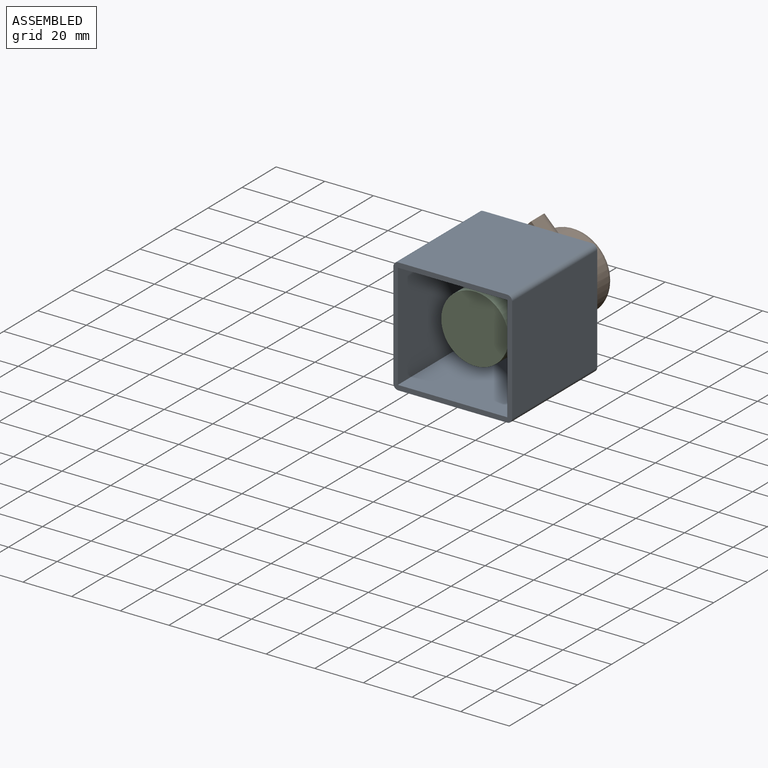
[diagram: assembled view]
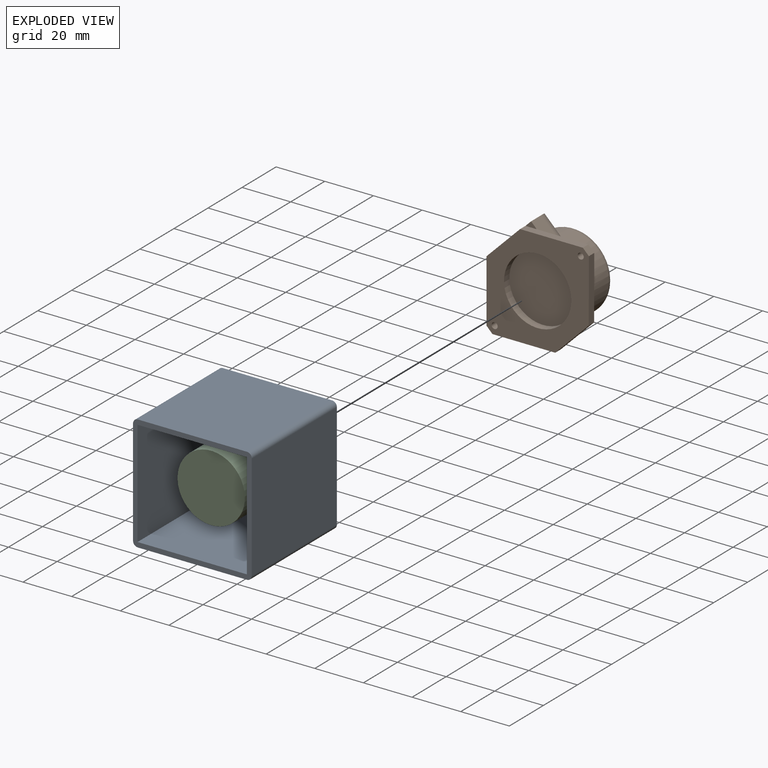
[diagram: exploded view]
GUIDED TOUR — MATED ASSEMBLY (Onshape document b7fde96b1c30bc0657f4f036, AutoMate assembly b7fde96b1c30bc0657f4f036_64c29fdbe87428bc395a7055_68232977d7bca1f0957cc7c8_default)

This assembly has 3 components, labeled P0..P2 below (a component is one placed occurrence of a part; the same part can appear more than once), held together by 2 mates. A mate is a constraint between two components; its type names the relative motion it leaves free:
  FASTENED — locks the two components together rigidly (no relative motion),
  REVOLUTE — leaves rotation about the listed axis free (a hinge).
Axis/direction vectors are unit vectors and 'through' points are millimeter coordinates, both in the assembly's world frame.

MATES
  1. REVOLUTE "Revolute 1": P0 <-> P1, axis (0.000, 1.000, 0.000) through (17.77, 25.03, 17.70) mm
  2. FASTENED "Fastened 1": P1 <-> P2, direction (0.000, -1.000, 0.000) through (0.07, 28.18, 0.04) mm

ASSEMBLY ORDER
  1. P1 — the base component [order heuristic]
  2. P2 — core [order heuristic]
  3. P0 [order verified]
Order-tag legend:
  [order verified] — this step's position reverses a verified removal order: the component was checked to insert without passing through the ones already placed.
  [order heuristic] — the first 2 components form the assembly's core: parts whose collision-free extraction could not be verified, listed in mate-graph order.

Of the 3 components, 1 carries the full construction recipe — the FeatureScript program that regenerates the part's solid from scratch; the rest are supplied as boundary geometry only.
Each toured component is shown spotlighted twice — in the assembled view, then in the exploded view, where a leader line traces a displaced component back to its assembled socket (saturated green if recipe-attached, orange if geometry-only; every other component desaturated gray) — followed by its recipe or geometry summary and the mates that hold it.
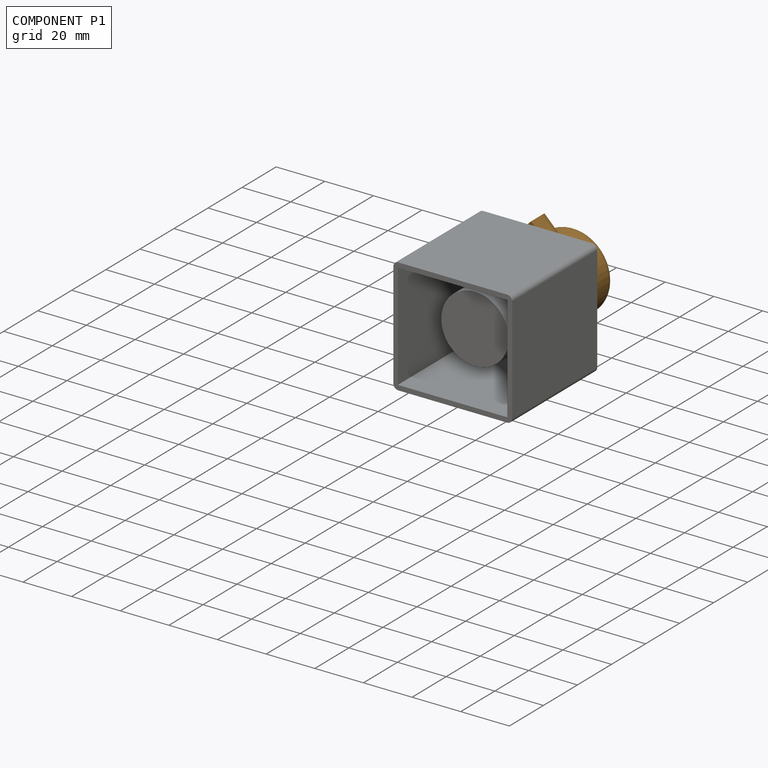
[diagram: component P1 — assembled]
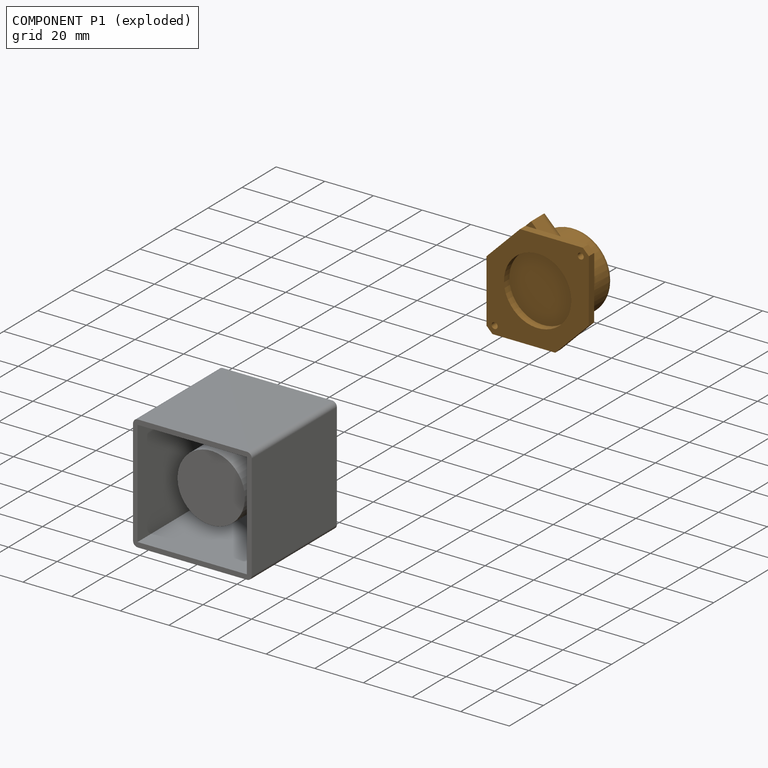
[diagram: component P1 — exploded]
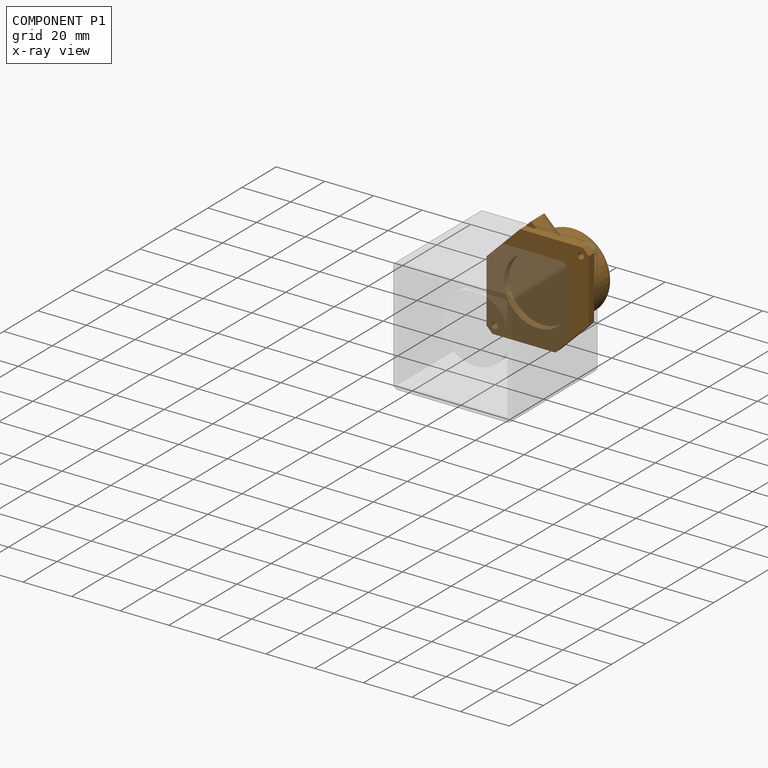
[diagram: component P1 — x-ray view]
COMPONENT P1 — geometry summary (no construction recipe available for this part):
  bounding box: 56.0 x 40.0 x 22.2 mm
  B-rep topology: 1 solid, 24 faces, 114 edges
  volume: 19330 mm^3 (39% of its bounding box)
  symmetry: mirror-symmetric across its x mid-plane
Held by: REVOLUTE mate "Revolute 1" to P0; FASTENED mate "Fastened 1" to P2.
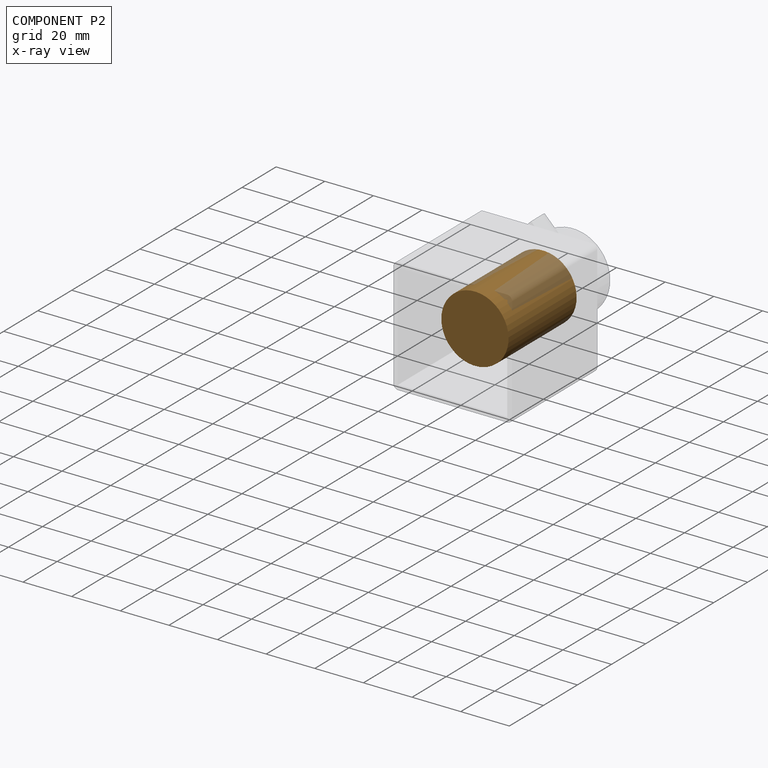
[diagram: component P2 — x-ray view]
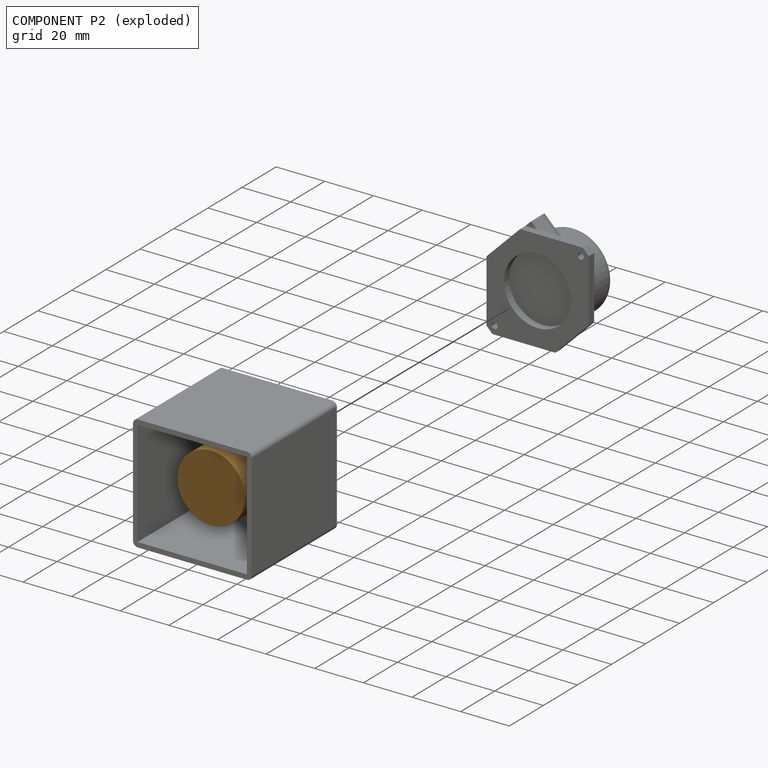
[diagram: component P2 — exploded]
COMPONENT P2 — geometry summary (no construction recipe available for this part):
  bounding box: 40.0 x 27.7 x 27.7 mm
  B-rep topology: 1 solid, 3 faces, 6 edges
  volume: 24105 mm^3 (79% of its bounding box)
  symmetry: 2-fold rotationally symmetric about the x axis; revolution-symmetric about the y axis through its bounding-box center; 2-fold rotationally symmetric about the z axis; mirror-symmetric across its x mid-plane, y mid-plane, z mid-plane
Held by: FASTENED mate "Fastened 1" to P1.
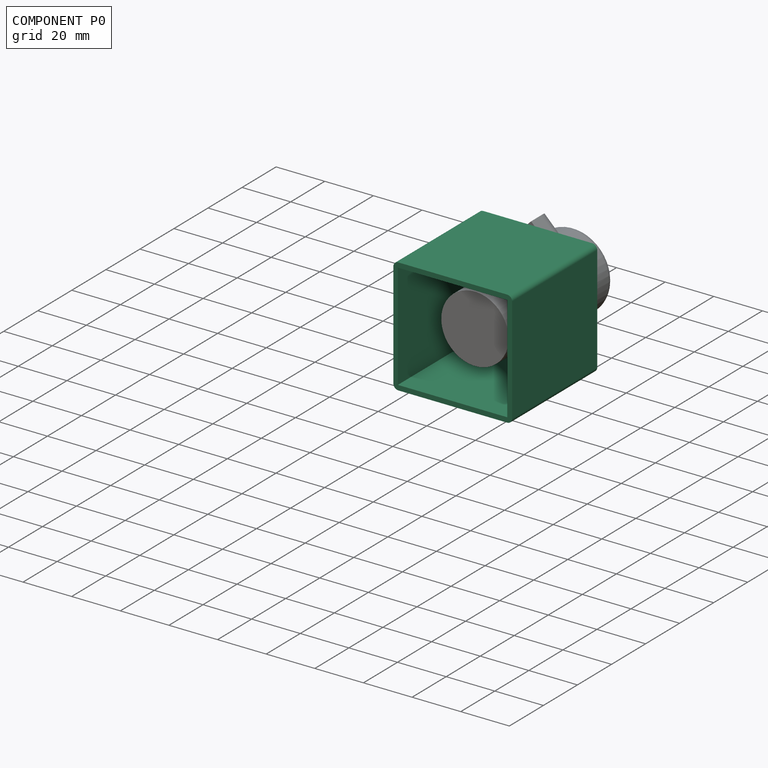
[diagram: component P0 — assembled]
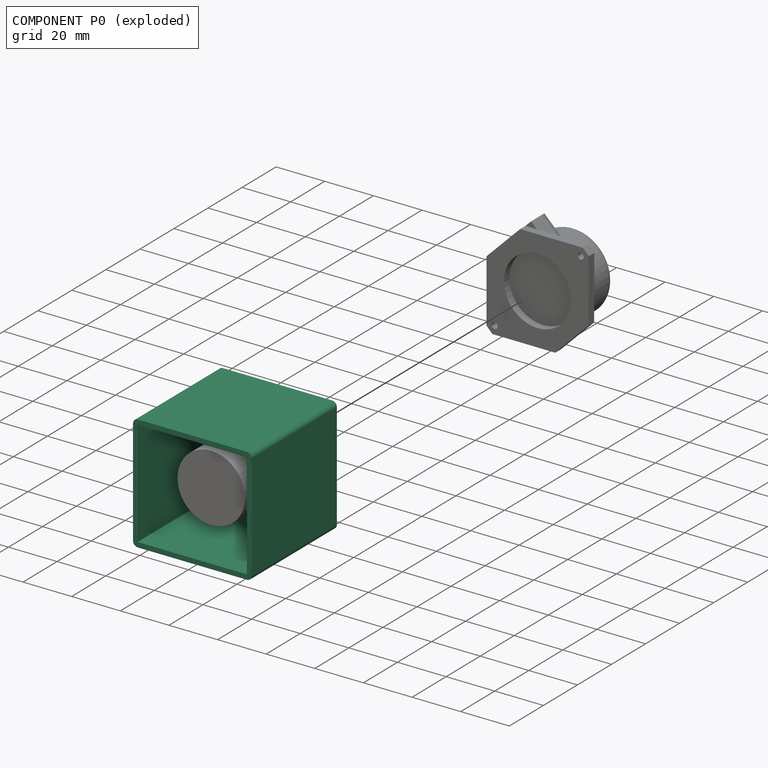
[diagram: component P0 — exploded]
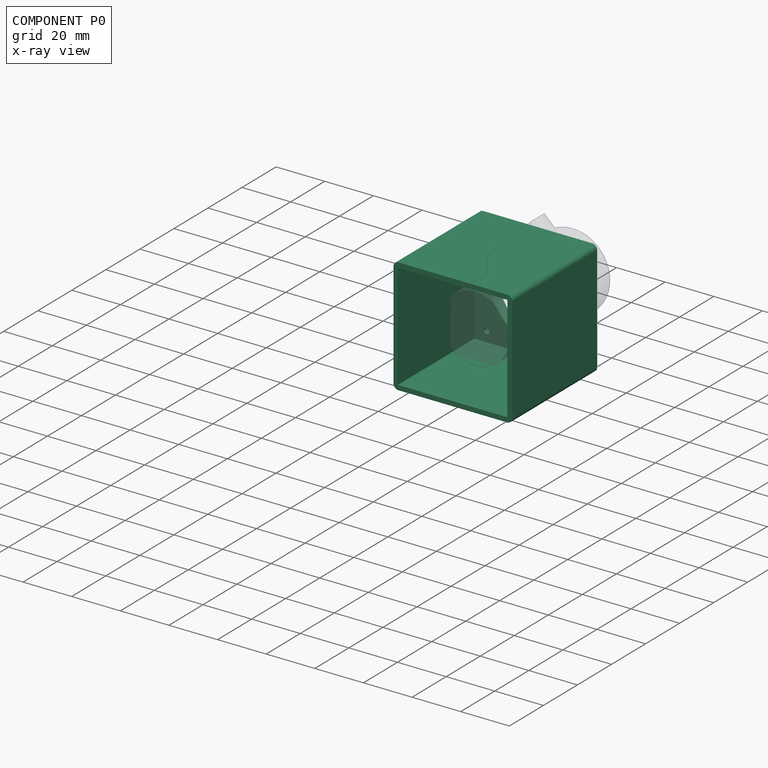
[diagram: component P0 — x-ray view]
COMPONENT P0 — recipe-attached (CADFS 00377191, mesh-verified: the recipe's output STEP matches this component's geometry to below the mesh-comparison resolution (tessellation chordal tolerance ~0.127 mm)).
Held by: REVOLUTE mate "Revolute 1" to P1.
Construction recipe (FeatureScript — the CAD program that rebuilds this solid; sketch coordinates are in the units given by the * unit suffixes, e.g. mm):

FeatureScript 1511;
import(path : "onshape/std/geometry.fs", version : "1511.0");
import(path : "onshape/std/common.fs", version : "1511.0");
const mm = millimeter;
const VERTEX = EntityType.VERTEX;
const EDGE = EntityType.EDGE;
const FACE = EntityType.FACE;
const BODY = EntityType.BODY;
function v(x, y){return vector(x, y);}
function OD(order){return orderDisambiguation(order);}
function OSD(set){return originalSetDisambiguation(set);}
function TD(topology){return topologyDisambiguation(topology);}
function TDD(query){return trueDependencyDisambiguation(query);}
function sQuery(a, b, c) {return sketchEntityQuery(a, b, c);}

annotation { "Feature Type Name" : "Feature", "Feature Type Description" : "" }
export const myFeature = defineFeature(function(context is Context, id is Id, definition is map)
    precondition{}
    {
        {
            var Q0;
            Q0=qCreatedBy(makeId("Front.planeOp"),FACE);
            var sketch = newSketch(context, id + "F0", { "sketchPlane" : qUnion([Q0])});
            skLineSegment(sketch, "E0", {"start": v(-21.02, -18.52) * mm, "end": v(-21.02, 7.29) * mm});
            skLineSegment(sketch, "E1", {"start": v(-21.02, 7.29) * mm, "end": v(-7.24, 21.08) * mm});
            skLineSegment(sketch, "E2", {"start": v(-7.24, 21.08) * mm, "end": v(18.57, 21.08) * mm});
            skLineSegment(sketch, "E3", {"start": v(21.05, 18.6) * mm, "end": v(21.05, -7.2) * mm});
            skLineSegment(sketch, "E4", {"start": v(21.05, -7.2) * mm, "end": v(7.26, -21) * mm});
            skLineSegment(sketch, "E5", {"start": v(7.26, -21) * mm, "end": v(-18.55, -21) * mm});
            skLineSegment(sketch, "E6", {"start": v(18.57, 21.08) * mm, "end": v(21.05, 18.6) * mm});
            skLineSegment(sketch, "E7", {"start": v(-21.02, -18.52) * mm, "end": v(-18.55, -21) * mm});
            skPoint(sketch, "E8.orphan", {"position": v(-21.02, -21) * mm});
            skPoint(sketch, "E9.orphan", {"position": v(21.05, 21.08) * mm});
            skLineSegment(sketch, "E10", {"start": v(0.01, 0.04) * mm, "end": v(17.7, 17.72) * mm, "construction": true});
            skLineSegment(sketch, "E11", {"start": v(0.01, 0.04) * mm, "end": v(-17.67, -17.64) * mm, "construction": true});
            skCircle(sketch, "E12", {"center": v(-17.67, -17.64) * mm, "radius": 1.25 * mm});
            skCircle(sketch, "E13", {"center": v(17.7, 17.72) * mm, "radius": 1.25 * mm});
            skCircle(sketch, "E14", {"center": v(0.01, 0.04) * mm, "radius": 13.85 * mm});
            skLineSegment(sketch, "E15.0", {"start": v(21.05, -7.2) * mm, "end": v(-7.24, 21.08) * mm, "construction": true});
            skLineSegment(sketch, "E16.0", {"start": v(7.26, -21) * mm, "end": v(-21.02, 7.29) * mm, "construction": true});
            skSolve(sketch);
        }
        {
            var Q0;
            Q0=qCreatedBy(makeId("Front.planeOp"),FACE);
            var sketch = newSketch(context, id + "F1", { "sketchPlane" : qUnion([Q0])});
            skCircle(sketch, "E17", {"center": v(0, 0) * mm, "radius": 15.75 * mm});
            skSolve(sketch);
        }
        {
            var Q0;
            Q0=qCreatedBy(makeId("Front.planeOp"),FACE);
            var sketch = newSketch(context, id + "F2", { "sketchPlane" : qUnion([Q0])});
            skLineSegment(sketch, "E18.bottom", {"start": v(22.5, -21.8) * mm, "end": v(-22.5, -21.8) * mm});
            skLineSegment(sketch, "E18.top", {"start": v(22.5, 21.8) * mm, "end": v(-22.5, 21.8) * mm});
            skLineSegment(sketch, "E18.left", {"start": v(22.5, -21.8) * mm, "end": v(22.5, 21.8) * mm});
            skLineSegment(sketch, "E18.right", {"start": v(-22.5, -21.8) * mm, "end": v(-22.5, 21.8) * mm});
            skPoint(sketch, "E18.middle", {"position": v(0, 0) * mm});
            skCircle(sketch, "E19.0", {"center": v(-17.67, -17.64) * mm, "radius": 1.25 * mm});
            skCircle(sketch, "E20.0", {"center": v(17.7, 17.72) * mm, "radius": 1.25 * mm});
            skCircle(sketch, "E21.0", {"center": v(0, 0) * mm, "radius": 15.75 * mm});
            skLineSegment(sketch, "E22.0", {"start": v(24.5, 23.8) * mm, "end": v(-24.34, 23.8) * mm});
            skLineSegment(sketch, "E22.1", {"start": v(24.5, -23.8) * mm, "end": v(24.5, 23.8) * mm});
            skLineSegment(sketch, "E22.2", {"start": v(24.5, -23.8) * mm, "end": v(-24.34, -23.8) * mm});
            skLineSegment(sketch, "E22.3", {"start": v(-24.34, -23.8) * mm, "end": v(-24.34, 23.8) * mm});
            skSolve(sketch);
        }
        {
            var Q0;
            Q0=makeQuery(id+"F2.imprint","IMPRINT",FACE,{"disambiguationData":[TD([[makeQuery(id+"F2.imprint","IMPRINT",EDGE,{"derivedFrom":sQuery(id+"F2.wireOp",EDGE,"E18.bottom")}),-1.0]])]});
            var Q1;
            Q1=makeQuery(id+"F2.imprint","IMPRINT",FACE,{"disambiguationData":[TD([[makeQuery(id+"F2.imprint","IMPRINT",EDGE,{"derivedFrom":sQuery(id+"F2.wireOp",EDGE,"E18.bottom")}),1.0]])]});
            extrude(context, id + "F3", {"entities" : qUnion([Q0, Q1]), "depth" : 5 * mm});
        }
        {
            var Q0;
            Q0=makeQuery(id+"F2.imprint","IMPRINT",FACE,{"disambiguationData":[TD([[makeQuery(id+"F2.imprint","IMPRINT",EDGE,{"derivedFrom":sQuery(id+"F2.wireOp",EDGE,"E18.bottom")}),1.0]])]});
            extrude(context, id + "F4", {"entities" : qUnion([Q0]), "operationType" : NewBodyOperationType.ADD, "depth" : 50 * mm});
        }
        {
            var Q0;
            {var subQ0=sQuery(id+"F2.wireOp",EDGE,"E22.3");var subQ1=sQuery(id+"F2.wireOp",EDGE,"E22.0");Q0=makeQuery(id+"F4.boolean.opBoolean","MERGE",EDGE,{"derivedFrom":[makeQuery(id+"F3.opExtrude","SWEPT_EDGE",EDGE,{"disambiguationData":[OSD([subQ1,subQ0])]}),makeQuery(id+"F4.opExtrude","SWEPT_EDGE",EDGE,{"disambiguationData":[OSD([subQ1,subQ0])]})]});}
            var Q1;
            {var subQ0=sQuery(id+"F2.wireOp",EDGE,"E22.1");var subQ1=sQuery(id+"F2.wireOp",EDGE,"E22.0");Q1=makeQuery(id+"F4.boolean.opBoolean","MERGE",EDGE,{"derivedFrom":[makeQuery(id+"F3.opExtrude","SWEPT_EDGE",EDGE,{"disambiguationData":[OSD([subQ1,subQ0])]}),makeQuery(id+"F4.opExtrude","SWEPT_EDGE",EDGE,{"disambiguationData":[OSD([subQ1,subQ0])]})]});}
            var Q2;
            {var subQ0=sQuery(id+"F2.wireOp",EDGE,"E22.2");var subQ1=sQuery(id+"F2.wireOp",EDGE,"E22.1");Q2=makeQuery(id+"F4.boolean.opBoolean","MERGE",EDGE,{"derivedFrom":[makeQuery(id+"F3.opExtrude","SWEPT_EDGE",EDGE,{"disambiguationData":[OSD([subQ1,subQ0])]}),makeQuery(id+"F4.opExtrude","SWEPT_EDGE",EDGE,{"disambiguationData":[OSD([subQ1,subQ0])]})]});}
            var Q3;
            {var subQ0=sQuery(id+"F2.wireOp",EDGE,"E22.3");var subQ1=sQuery(id+"F2.wireOp",EDGE,"E22.2");Q3=makeQuery(id+"F4.boolean.opBoolean","MERGE",EDGE,{"derivedFrom":[makeQuery(id+"F3.opExtrude","SWEPT_EDGE",EDGE,{"disambiguationData":[OSD([subQ1,subQ0])]}),makeQuery(id+"F4.opExtrude","SWEPT_EDGE",EDGE,{"disambiguationData":[OSD([subQ1,subQ0])]})]});}
            fillet(context, id + "F5", {"entities" : qUnion([Q0, Q1, Q2, Q3]), "radius" : 2 * mm, "tangentPropagation" : true, "allowEdgeOverflow" : false});
        }
    });
PROVENANCE & LICENSES
Assembly (occurrences, transforms, mates, per-part STEP geometry): AutoMate dataset, Zenodo record 7776208, CC0.
Construction recipes: CADFS (HuggingFace VladPyatov/CADFS, CC-BY-4.0, layered over the ABC dataset), FeatureScript reconstruction programs keyed by ABC model id.
Join: ABC meta listings map ABC model id -> Onshape documentId; within a shared document, parts are matched by geometric signature (bounding-box dims + volume at 0.1% relative tolerance, exact B-rep face/solid counts).
Verification: 1 of this assembly's 3 components carries a recipe attachment, and every attachment is mesh-verified: the CADFS STEP and the AutoMate member STEP were compared as meshes in their shared local frame (symmetric sampled-point-to-mesh distance); worst across the 1 attachment: below the mesh-comparison resolution (tessellation chordal tolerance ~0.127 mm) on a 85 mm part.
Renders: orthographic iso camera (az 35 / el 25); the floor grid conveys scale (grid pitch printed in each image; no ruler). In the exploded view each component is displaced by its stored offset vector: the offsets alone carry the explosion direction (mate normal/axis signs are not orientation cues and do not encode it), and separation distances are assigned per mate-chain, not proportionally to assembly-order depth.
